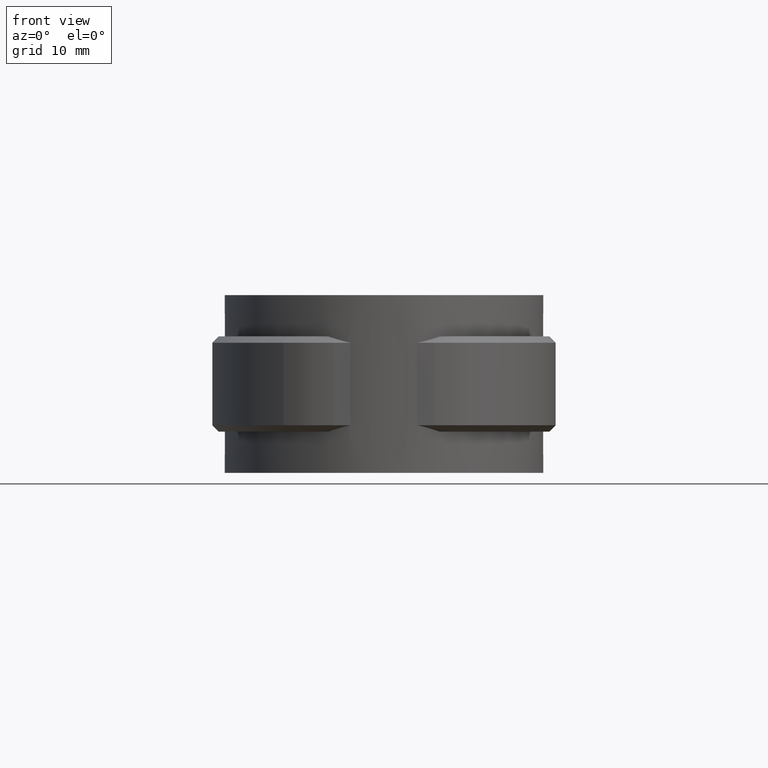
[diagram: clean part render]
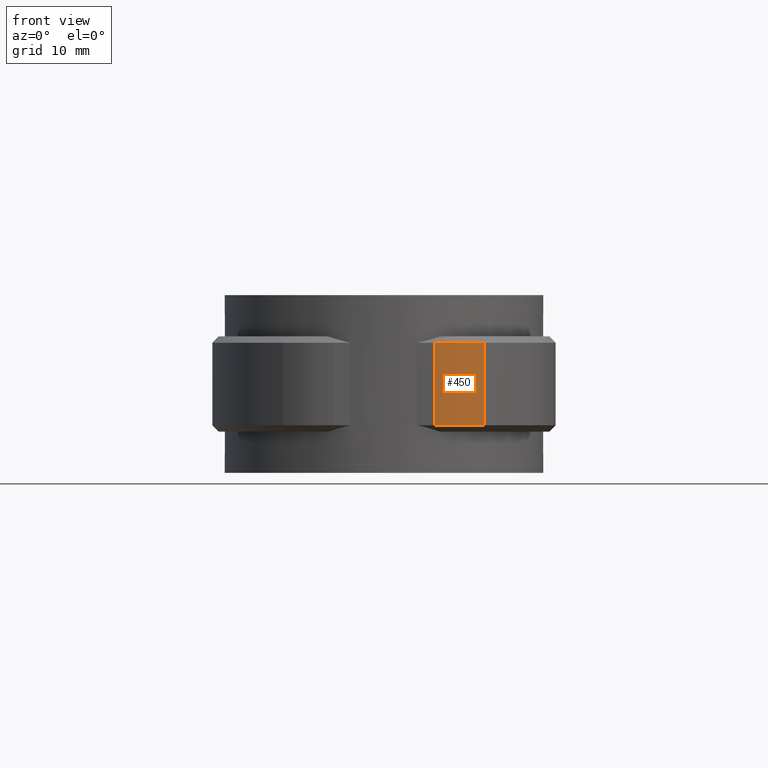
[diagram: same view with one face highlighted and labeled with its STEP entity id]
A machine part, front view. The second image highlights one B-rep face of the part: STEP entity #450.
In plain terms, the highlighted cylindrical surface (partial cylindrical patch) has radius 13.6 mm, axis along (0, 0, -1).
Its self-contained STEP definition (entity closure, byte-faithful):
#450 = ADVANCED_FACE( '', ( #895 ), #896, .T. );
#895 = FACE_OUTER_BOUND( '', #2019, .T. );
#896 = CYLINDRICAL_SURFACE( '', #2020, 13.6000000000000 );
#2019 = EDGE_LOOP( '', ( #4173, #4174, #4175, #4176 ) );
#2020 = AXIS2_PLACEMENT_3D( '', #4177, #4178, #4179 );
#4173 = ORIENTED_EDGE( '', *, *, #6659, .T. );
#4174 = ORIENTED_EDGE( '', *, *, #6605, .T. );
#4175 = ORIENTED_EDGE( '', *, *, #6661, .F. );
#4176 = ORIENTED_EDGE( '', *, *, #6653, .T. );
#4177 = CARTESIAN_POINT( '', ( 7.90550795331962, -10.9370000000000, -20.0000000000000 ) );
#4178 = DIRECTION( '', ( 0.000000000000000, 0.000000000000000, -1.00000000000000 ) );
#4179 = DIRECTION( '', ( 0.209705966713379, 0.977764494919307, 0.000000000000000 ) );
#6605 = EDGE_CURVE( '', #7716, #7713, #7717, .F. );
#6653 = EDGE_CURVE( '', #7793, #7797, #7799, .T. );
#6659 = EDGE_CURVE( '', #7797, #7716, #7805, .T. );
#6661 = EDGE_CURVE( '', #7793, #7713, #7807, .T. );
#7713 = VERTEX_POINT( '', #10946 );
#7716 = VERTEX_POINT( '', #10950 );
#7717 = CIRCLE( '', #10951, 13.6000000000000 );
#7793 = VERTEX_POINT( '', #11073 );
#7797 = VERTEX_POINT( '', #11079 );
#7799 = CIRCLE( '', #11082, 13.6000000000000 );
#7805 = LINE( '', #11089, #11090 );
#7807 = LINE( '', #11092, #11093 );
#10946 = CARTESIAN_POINT( '', ( 7.90550795331962, -24.5370000000000, -6.00000000000000 ) );
#10950 = CARTESIAN_POINT( '', ( 15.8725259722264, -21.9590970729900, -6.00000000000000 ) );
#10951 = AXIS2_PLACEMENT_3D( '', #12944, #12945, #12946 );
#11073 = CARTESIAN_POINT( '', ( 7.90550795331962, -24.5370000000000, -19.0000000000000 ) );
#11079 = CARTESIAN_POINT( '', ( 15.8725259722264, -21.9590970729900, -19.0000000000000 ) );
#11082 = AXIS2_PLACEMENT_3D( '', #13014, #13015, #13016 );
#11089 = CARTESIAN_POINT( '', ( 15.8725259722264, -21.9590970729900, -20.0000000000000 ) );
#11090 = VECTOR( '', #13030, 1000.00000000000 );
#11092 = CARTESIAN_POINT( '', ( 7.90550795331962, -24.5370000000000, -20.0000000000000 ) );
#11093 = VECTOR( '', #13034, 1000.00000000000 );
#12944 = CARTESIAN_POINT( '', ( 7.90550795331962, -10.9370000000000, -6.00000000000000 ) );
#12945 = DIRECTION( '', ( 0.000000000000000, 0.000000000000000, 1.00000000000000 ) );
#12946 = DIRECTION( '', ( 1.00000000000000, 0.000000000000000, 0.000000000000000 ) );
#13014 = CARTESIAN_POINT( '', ( 7.90550795331962, -10.9370000000000, -19.0000000000000 ) );
#13015 = DIRECTION( '', ( 0.000000000000000, 0.000000000000000, 1.00000000000000 ) );
#13016 = DIRECTION( '', ( 1.00000000000000, 0.000000000000000, 0.000000000000000 ) );
#13030 = DIRECTION( '', ( 0.000000000000000, 0.000000000000000, 1.00000000000000 ) );
#13034 = DIRECTION( '', ( 0.000000000000000, 0.000000000000000, 1.00000000000000 ) );